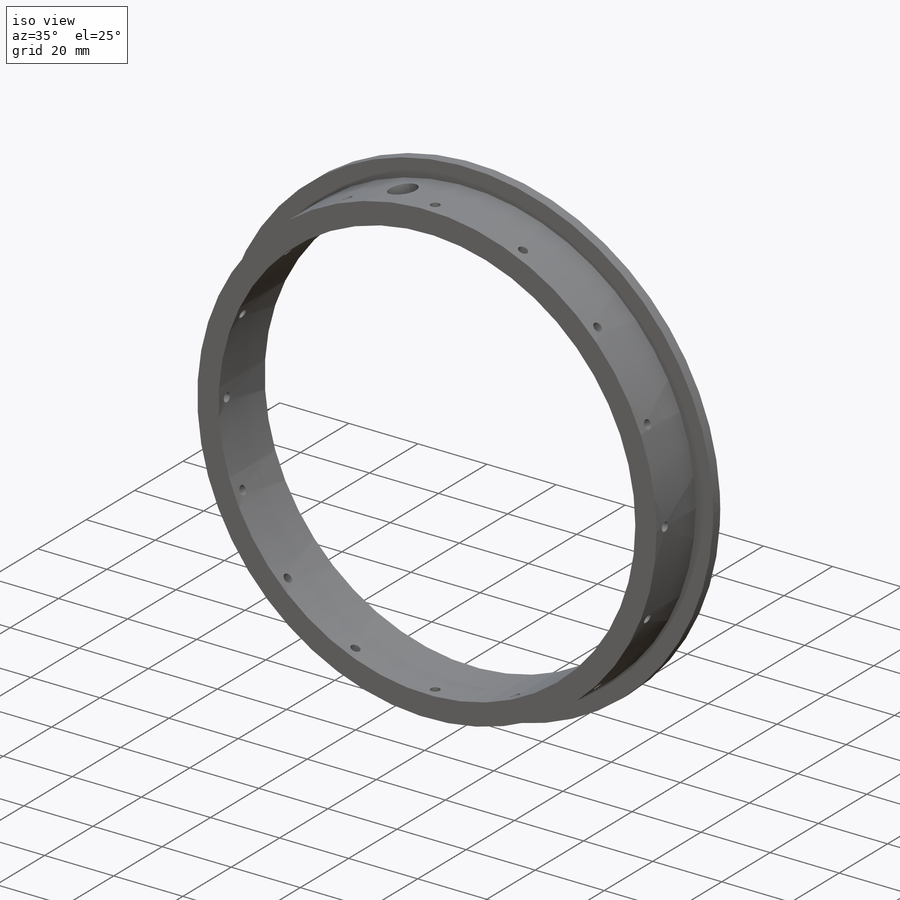
[diagram: iso view]
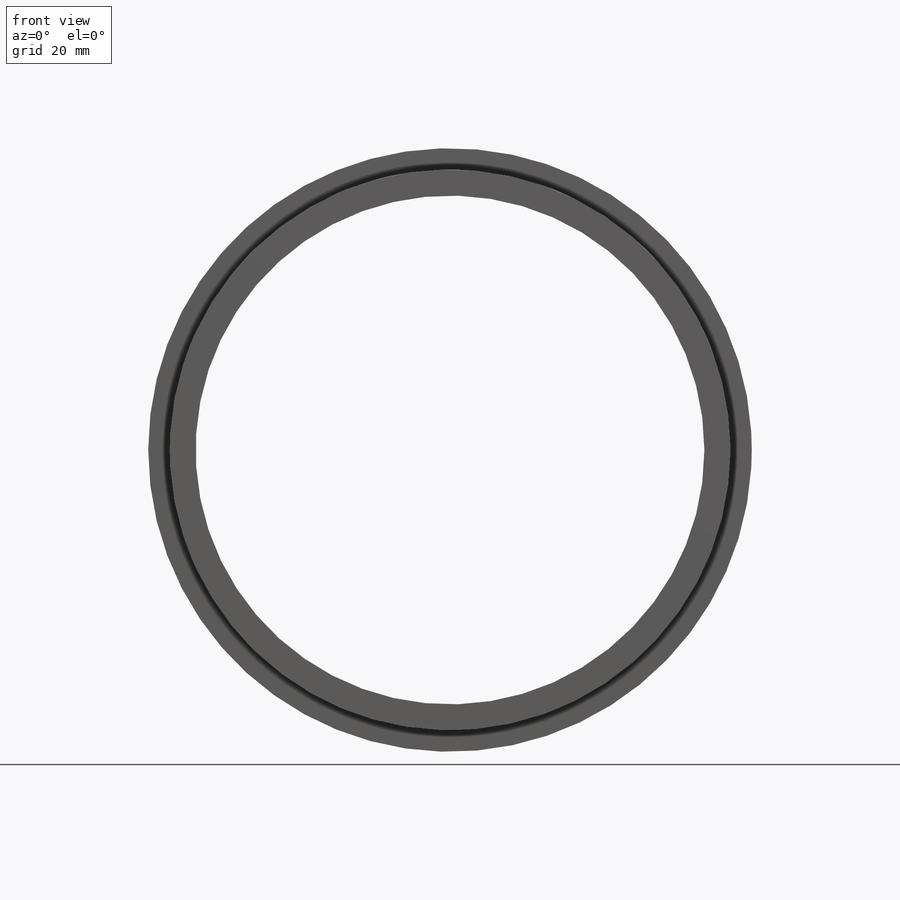
[diagram: front view]
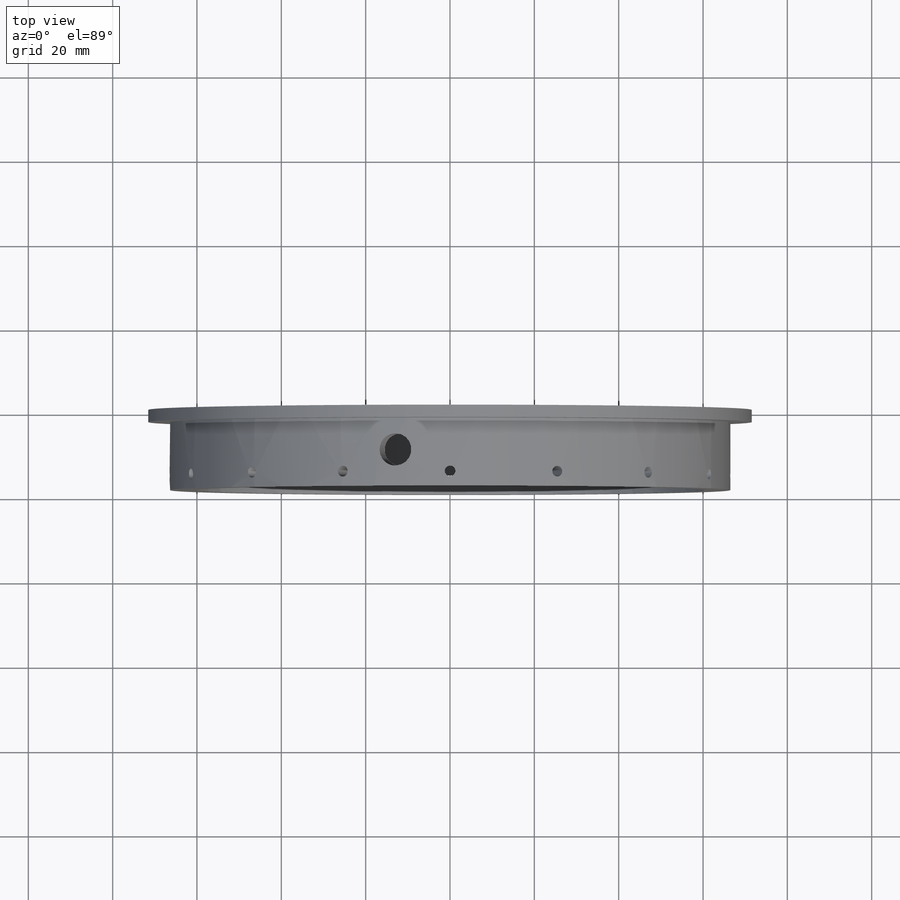
[diagram: top view]
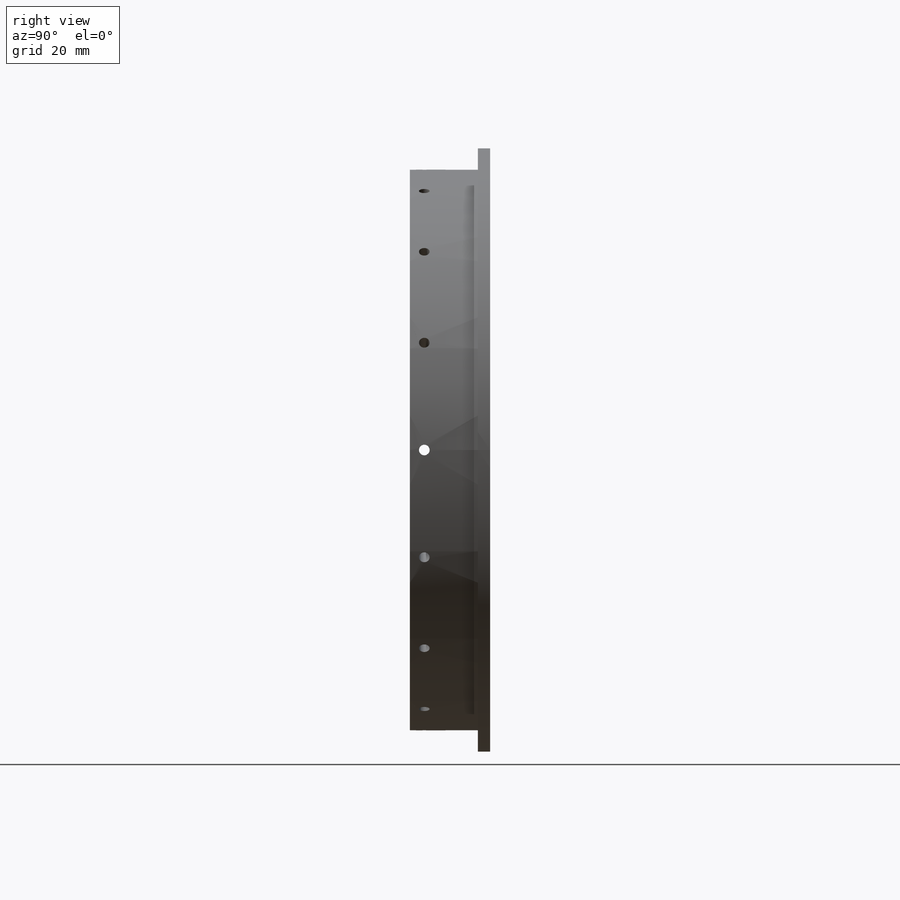
[diagram: right view]
SOLIDWORKS PART (.sldprt)
format: sldprt  version: not decoded by parser v0  size: 381,952 bytes
history: native  units: mm
features: sketch x16, plane x6, cut_extrude x3, material x1, extrude x1, hole x1, pattern_circular x1 (+12 scaffold rows collapsed)
feature tree (41):
  scaffold x12  (default folders/planes/origin — collapsed)
  material  "6061-T6 (SS)"
  sketch  "Sketch1"  dims[D1=~76.28886mm]
  extrude  "Extrude1"  Depth=19.05mm
  sketch  "Sketch2"  dims[D1=120.65mm]
  cut_extrude  "Extrude2"  Depth=19.05mm
  sketch  "Sketch3"  dims[D1=132.969mm]
  cut_extrude  "Extrude3"  Depth=16.129mm
  plane  "Plane2"  Offset=12.7mm
  sketch  "Sketch10"  dims[D1=270.0deg]
  sketch  "Sketch13"  dims[D1=~13.071204deg]
  sketch  "Sketch14"  dims[D1=157.5deg]
  sketch  "Sketch15"  dims[D1=~17.138238deg]
  plane  "Plane3"
  plane  "Plane5"
  sketch  "Sketch39"
  plane  "Plane6"
  hole  "#39 (0.0995) Diameter Hole5"  Diameter=2.5273mm Depth=12.7mm
  sketch  "Sketch42"
  sketch  "Sketch41"  dims[hole-wizard template sketch: 47 standard entries collapsed; hole parameters kept: c15.Hole Depth=12.7mm c15.D3=~14.816244mm c15.Drill Angle=118.0deg]
  pattern_circular  "CirPattern1"  Count=16 Angle=360deg
  sketch  "Sketch54"  dims[D1=~16.507674deg]
  sketch  "Sketch56"  dims[D1=157.5deg]
  sketch  "Sketch58"  dims[D1=~15.384511deg]
  plane  "Plane22"  Offset=7.62mm
  sketch  "Sketch100"  dims[D1=~7.242776deg]
  sketch  "Sketch101"
  plane  "Plane23"
  sketch  "Sketch102"  dims[D1=7.62mm]
  cut_extrude  "Extrude6"  Depth=10.16mm
decode coverage: 19 of 22 modeling features carry decoded parameters
note: ~ marks probable driven/reference dimensions
note: suppression state not decoded; provenance and decode notes live in map.json
